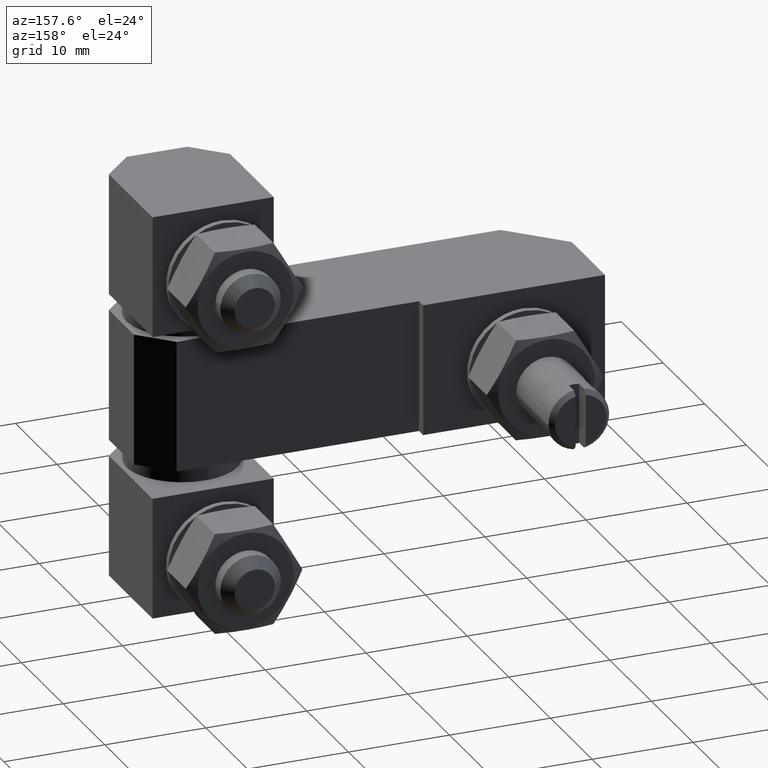
[diagram: clean part render]
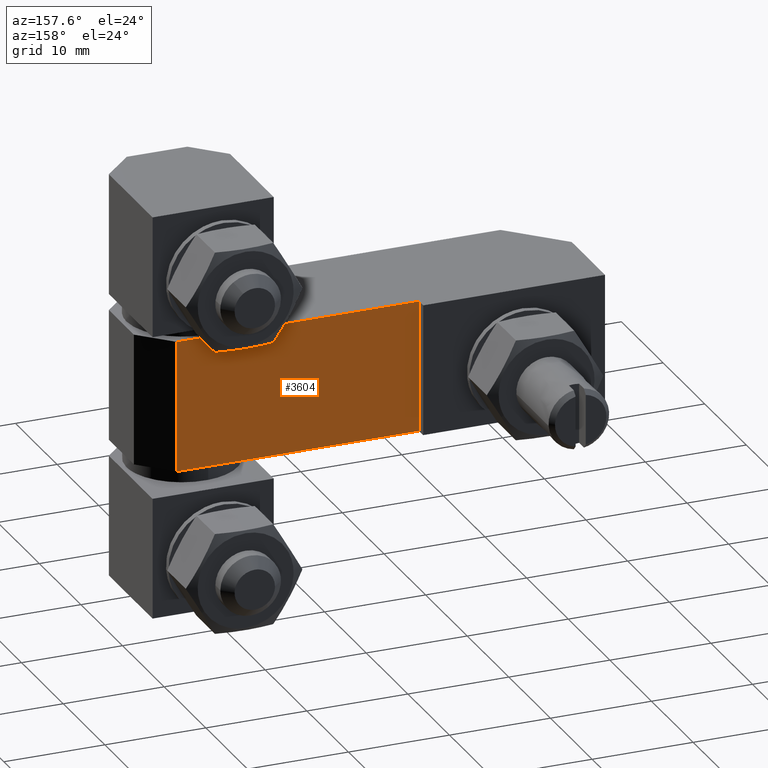
[diagram: same view with one face highlighted and labeled with its STEP entity id]
A machine part, auxiliary view. The second image highlights one B-rep face of the part: STEP entity #3604.
In plain terms, the highlighted face is a freeform B-spline surface patch.
Its self-contained STEP definition (entity closure, byte-faithful):
#3441=CARTESIAN_POINT('',(-21.000000997446399,5.999999928753830,13.600001027435081));
#3442=VERTEX_POINT('',#3441);
#3448=CARTESIAN_POINT('',(3.000000284984695,5.999999928753830,13.600001027435081));
#3449=VERTEX_POINT('',#3448);
#3450=CARTESIAN_POINT('',(-21.000000997446399,5.999999928753830,13.600001027435081));
#3451=CARTESIAN_POINT('',(3.000000284984695,5.999999928753830,13.600001027435081));
#3452=QUASI_UNIFORM_CURVE('',1,(#3450,#3451),.UNSPECIFIED.,.F.,.U.);
#3453=EDGE_CURVE('',#3442,#3449,#3452,.T.);
#3497=CARTESIAN_POINT('',(3.000000284984695,5.999999928753830,26.600001644901951));
#3498=VERTEX_POINT('',#3497);
#3504=CARTESIAN_POINT('',(-21.000000997446399,5.999999928753830,26.600001644901951));
#3505=VERTEX_POINT('',#3504);
#3506=CARTESIAN_POINT('',(-21.000000997446399,5.999999928753830,26.600001644901951));
#3507=CARTESIAN_POINT('',(3.000000284984695,5.999999928753830,26.600001644901951));
#3508=QUASI_UNIFORM_CURVE('',1,(#3506,#3507),.UNSPECIFIED.,.F.,.U.);
#3509=EDGE_CURVE('',#3505,#3498,#3508,.T.);
#3579=CARTESIAN_POINT('',(3.000000284984695,5.999999928753830,26.600001644901951));
#3580=CARTESIAN_POINT('',(3.000000284984695,5.999999928753830,13.600001027435081));
#3581=QUASI_UNIFORM_CURVE('',1,(#3579,#3580),.UNSPECIFIED.,.F.,.U.);
#3582=EDGE_CURVE('',#3498,#3449,#3581,.T.);
#3589=CARTESIAN_POINT('',(-22.198802141461378,5.999999928753830,12.950651265858539));
#3590=CARTESIAN_POINT('',(-22.198802141461378,5.999999928753830,27.249351987623811));
#3591=CARTESIAN_POINT('',(4.198800999846206,5.999999928753830,12.950651265858539));
#3592=CARTESIAN_POINT('',(4.198800999846206,5.999999928753830,27.249351987623811));
#3593=B_SPLINE_SURFACE_WITH_KNOTS('',1,1,((#3589,#3591),(#3590,#3592)),.UNSPECIFIED.,.F.,.F.,.U.,(2,2),(2,2),(0.0,14.298700721765270),(0.0,26.397603141307592),.UNSPECIFIED.);
#3594=ORIENTED_EDGE('',*,*,#3453,.F.);
#3595=CARTESIAN_POINT('',(-21.000000997446399,5.999999928753830,26.600001644901951));
#3596=CARTESIAN_POINT('',(-21.000000997446399,5.999999928753830,13.600001027435081));
#3597=QUASI_UNIFORM_CURVE('',1,(#3595,#3596),.UNSPECIFIED.,.F.,.U.);
#3598=EDGE_CURVE('',#3505,#3442,#3597,.T.);
#3599=ORIENTED_EDGE('',*,*,#3598,.F.);
#3600=ORIENTED_EDGE('',*,*,#3509,.T.);
#3601=ORIENTED_EDGE('',*,*,#3582,.T.);
#3602=EDGE_LOOP('',(#3594,#3599,#3600,#3601));
#3603=FACE_OUTER_BOUND('',#3602,.T.);
#3604=ADVANCED_FACE('',(#3603),#3593,.T.);